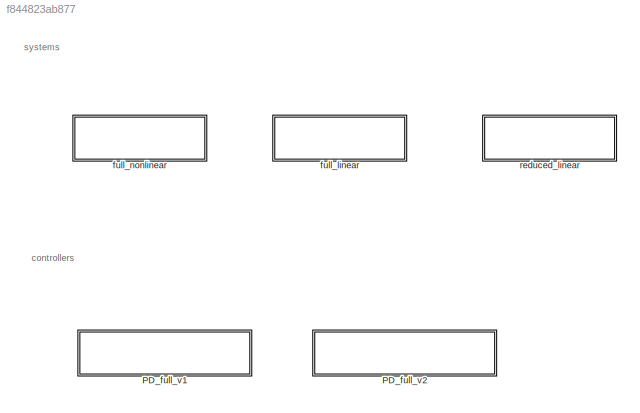
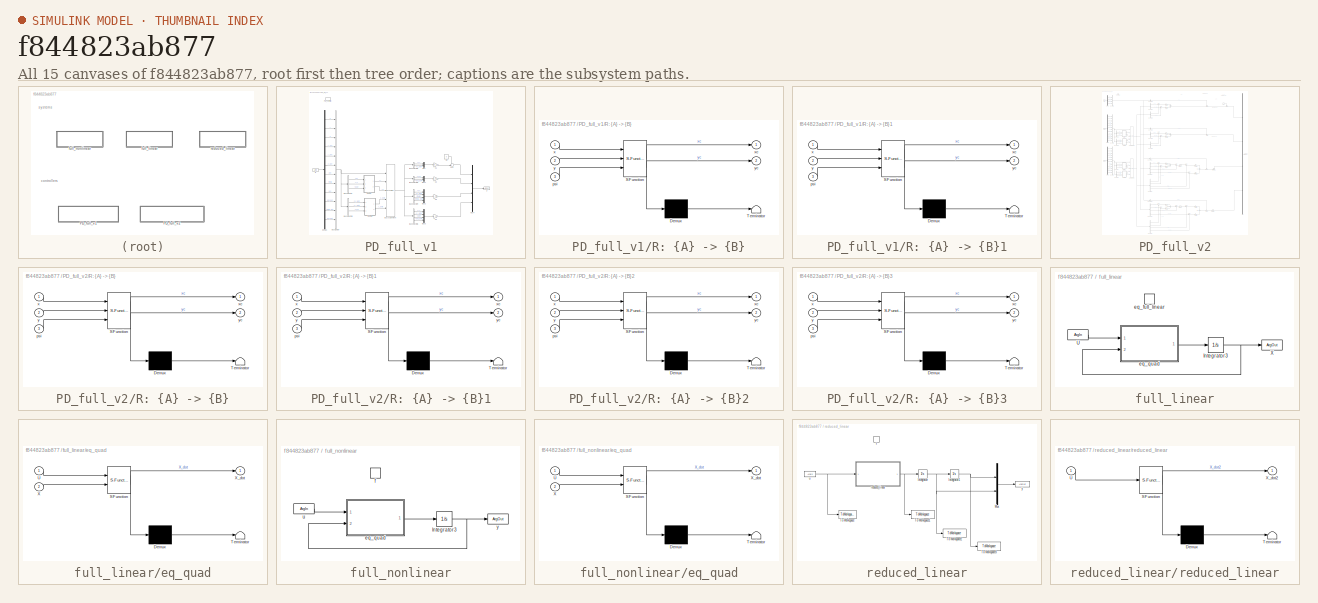
[diagram: thumbnail index - all 15 canvases of the model, root first then tree order]
MODEL slx_f844823ab877
KIND model
CONFIG AbsTol = auto
CONFIG FixedStep = auto
CONFIG MaxStep = auto
CONFIG MinStep = auto
CONFIG RelTol = 1e-3
CONFIG SampleTimeConstraint = Unconstrained
CONFIG Solver = ode45
CONFIG SolverMode = Auto
CONFIG SolverName = ode45
CONFIG StartTime = 0.0
CONFIG StopTime = 10.0
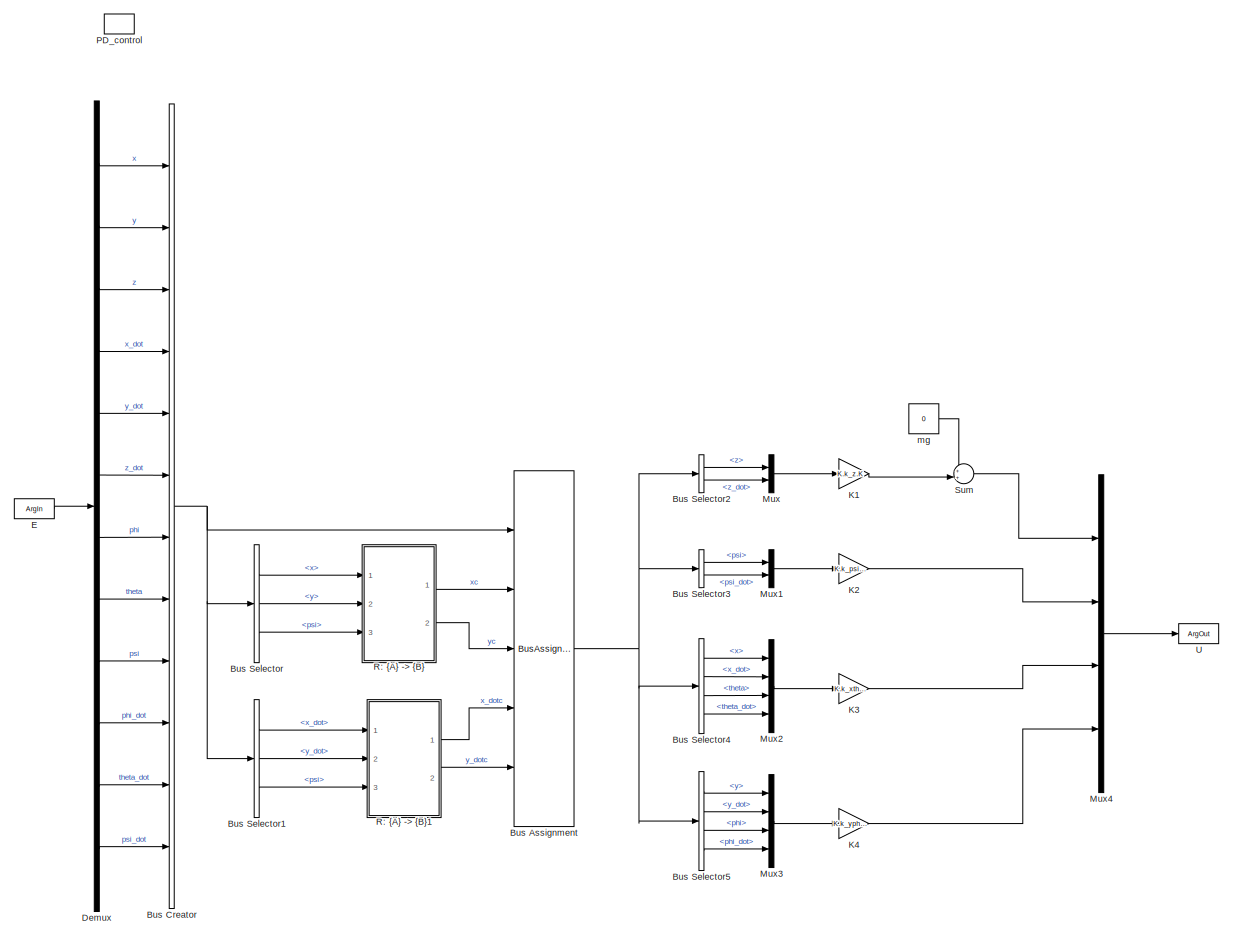
[diagram: PD_full_v1 - part 1/1, most of the canvas]
BLOCK [SubSystem] PD_full_v1
  Ports = [0, 0, 0, 1]
  RequestExecContextInheritance = off
  TreatAsAtomicUnit = on
BLOCK [BusAssignment] PD_full_v1/Bus Assignment
  AssignedSignals = x,y,x_dot,y_dot
  Ports = [5, 1]
BLOCK [BusCreator] PD_full_v1/Bus Creator
  DisplayOption = bar
  Inputs = 12
  Ports = [12, 1]
BLOCK [BusSelector] PD_full_v1/Bus Selector
  OutputSignals = x,y,psi
  Ports = [1, 3]
BLOCK [BusSelector] PD_full_v1/Bus Selector1
  OutputSignals = x_dot,y_dot,psi
  Ports = [1, 3]
BLOCK [BusSelector] PD_full_v1/Bus Selector2
  OutputSignals = z,z_dot
  Ports = [1, 2]
BLOCK [BusSelector] PD_full_v1/Bus Selector3
  OutputSignals = psi,psi_dot
  Ports = [1, 2]
BLOCK [BusSelector] PD_full_v1/Bus Selector4
  OutputSignals = x,x_dot,theta,theta_dot
  Ports = [1, 4]
BLOCK [BusSelector] PD_full_v1/Bus Selector5
  OutputSignals = y,y_dot,phi,phi_dot
  Ports = [1, 4]
BLOCK [Demux] PD_full_v1/Demux
  DisplayOption = bar
  Outputs = 12
  Ports = [1, 12]
BLOCK [ArgIn] PD_full_v1/E
  ArgumentName = E
  DisableCoverage = on
  PortDimensions = 12
BLOCK [Gain] PD_full_v1/K1
  Gain = K.k_z.K
  Multiplication = Matrix(K*u)
  OutDataTypeStr = Inherit: Inherit via internal rule
  ParamDataTypeStr = Inherit: Inherit via internal rule
  SaturateOnIntegerOverflow = off
BLOCK [Gain] PD_full_v1/K2
  Gain = K.k_psi.K
  Multiplication = Matrix(K*u)
  OutDataTypeStr = Inherit: Inherit via internal rule
  ParamDataTypeStr = Inherit: Inherit via internal rule
  SaturateOnIntegerOverflow = off
BLOCK [Gain] PD_full_v1/K3
  Gain = K.k_xtheta.K
  Multiplication = Matrix(K*u)
  OutDataTypeStr = Inherit: Inherit via internal rule
  ParamDataTypeStr = Inherit: Inherit via internal rule
  SaturateOnIntegerOverflow = off
BLOCK [Gain] PD_full_v1/K4
  Gain = K.k_yphi.K
  Multiplication = Matrix(K*u)
  OutDataTypeStr = Inherit: Inherit via internal rule
  ParamDataTypeStr = Inherit: Inherit via internal rule
  SaturateOnIntegerOverflow = off
BLOCK [Mux] PD_full_v1/Mux
  DisplayOption = bar
  Inputs = 2
  Ports = [2, 1]
BLOCK [Mux] PD_full_v1/Mux1
  DisplayOption = bar
  Inputs = 2
  Ports = [2, 1]
BLOCK [Mux] PD_full_v1/Mux2
  DisplayOption = bar
  Ports = [4, 1]
BLOCK [Mux] PD_full_v1/Mux3
  DisplayOption = bar
  Ports = [4, 1]
BLOCK [Mux] PD_full_v1/Mux4
  DisplayOption = bar
  Ports = [4, 1]
BLOCK [TriggerPort] PD_full_v1/PD_control
  FunctionName = PD_full_v1
  IsSimulinkFunction = on
  Ports = []
  StatesWhenEnabling = held
  TriggerType = function-call
BLOCK [SubSystem] PD_full_v1/R: {A} -> {B}
  ErrorFcn = Stateflow.Translate.translate
  PermitHierarchicalResolution = ExplicitOnly
  Ports = [3, 2]
  RequestExecContextInheritance = off
  SFBlockType = MATLAB Function
  TreatAsAtomicUnit = on
BLOCK [Demux] PD_full_v1/R: {A} -> {B}/ Demux 
  Outputs = 1
  Ports = [1, 1]
BLOCK [S-Function] PD_full_v1/R: {A} -> {B}/ SFunction 
  EnableBusSupport = on
  FunctionName = sf_sfun
  PortCounts = [3 3]
  Ports = [3, 3]
  Tag = Stateflow S-Function SYSTEM 3
BLOCK [Terminator] PD_full_v1/R: {A} -> {B}/ Terminator 
BLOCK [Inport] PD_full_v1/R: {A} -> {B}/psi
  IconDisplay = Port number
  Port = 3
BLOCK [Inport] PD_full_v1/R: {A} -> {B}/x
  IconDisplay = Port number
BLOCK [Outport] PD_full_v1/R: {A} -> {B}/xc
  IconDisplay = Port number
BLOCK [Inport] PD_full_v1/R: {A} -> {B}/y
  IconDisplay = Port number
  Port = 2
BLOCK [Outport] PD_full_v1/R: {A} -> {B}/yc
  IconDisplay = Port number
  Port = 2
BLOCK [SubSystem] PD_full_v1/R: {A} -> {B}1
  ErrorFcn = Stateflow.Translate.translate
  PermitHierarchicalResolution = ExplicitOnly
  Ports = [3, 2]
  RequestExecContextInheritance = off
  SFBlockType = MATLAB Function
  TreatAsAtomicUnit = on
BLOCK [Demux] PD_full_v1/R: {A} -> {B}1/ Demux 
  Outputs = 1
  Ports = [1, 1]
BLOCK [S-Function] PD_full_v1/R: {A} -> {B}1/ SFunction 
  EnableBusSupport = on
  FunctionName = sf_sfun
  PortCounts = [3 3]
  Ports = [3, 3]
  Tag = Stateflow S-Function SYSTEM 5
BLOCK [Terminator] PD_full_v1/R: {A} -> {B}1/ Terminator 
BLOCK [Inport] PD_full_v1/R: {A} -> {B}1/psi
  IconDisplay = Port number
  Port = 3
BLOCK [Inport] PD_full_v1/R: {A} -> {B}1/x
  IconDisplay = Port number
BLOCK [Outport] PD_full_v1/R: {A} -> {B}1/xc
  IconDisplay = Port number
BLOCK [Inport] PD_full_v1/R: {A} -> {B}1/y
  IconDisplay = Port number
  Port = 2
BLOCK [Outport] PD_full_v1/R: {A} -> {B}1/yc
  IconDisplay = Port number
  Port = 2
BLOCK [Sum] PD_full_v1/Sum
  IconShape = round
  InputSameDT = off
  Inputs = ++|
  OutDataTypeStr = Inherit: Inherit via internal rule
  Ports = [2, 1]
  SaturateOnIntegerOverflow = off
BLOCK [ArgOut] PD_full_v1/U
  ArgumentName = U
  DisableCoverage = on
  PortDimensions = 4
BLOCK [Constant] PD_full_v1/mg
  SampleTime = -1
  Value = 0
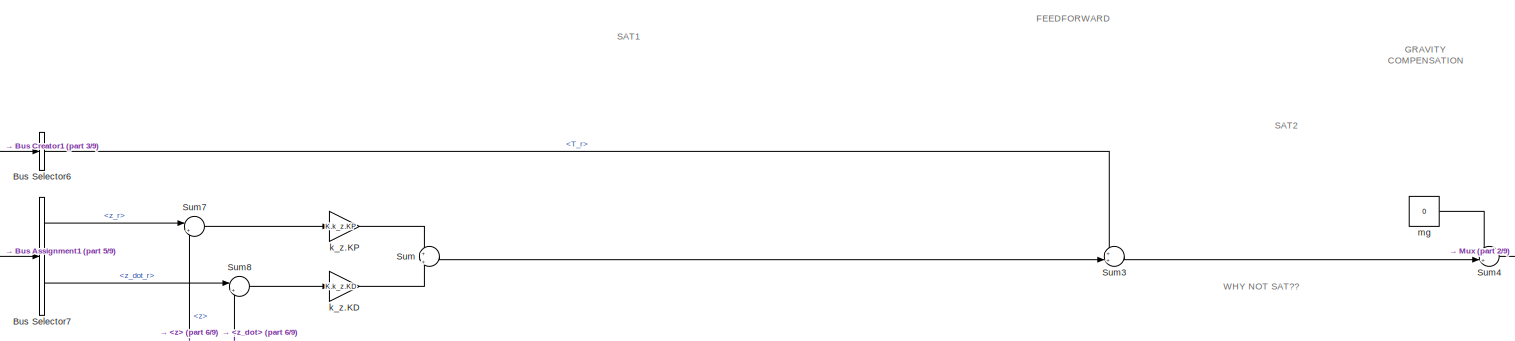
[diagram: PD_full_v2 - part 1/9, top center region]
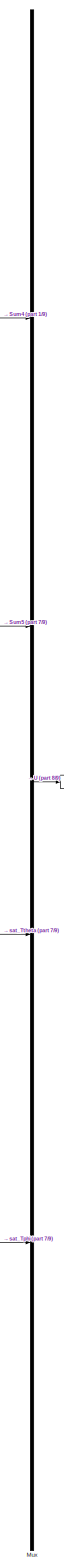
[diagram: PD_full_v2 - part 2/9, right side, full height]
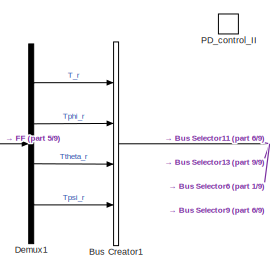
[diagram: PD_full_v2 - part 3/9, top left region]
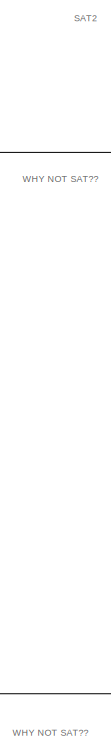
[diagram: PD_full_v2 - part 4/9, top right region]
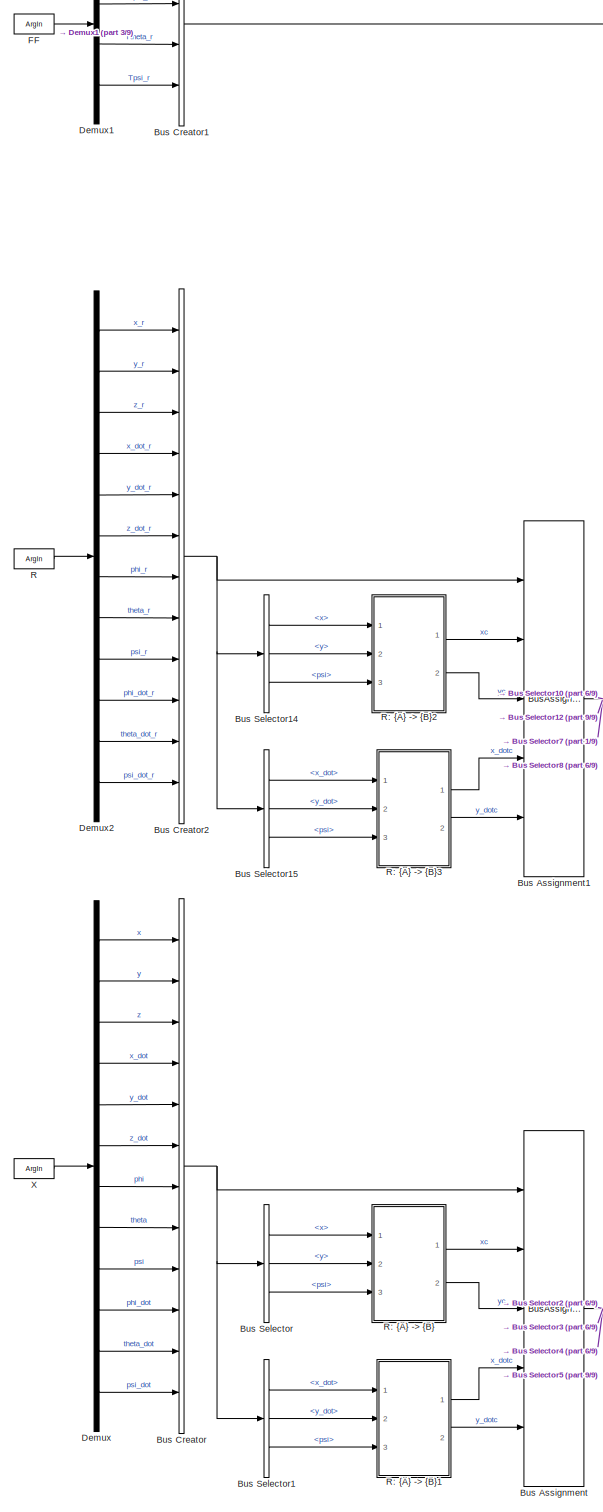
[diagram: PD_full_v2 - part 5/9, middle left region]
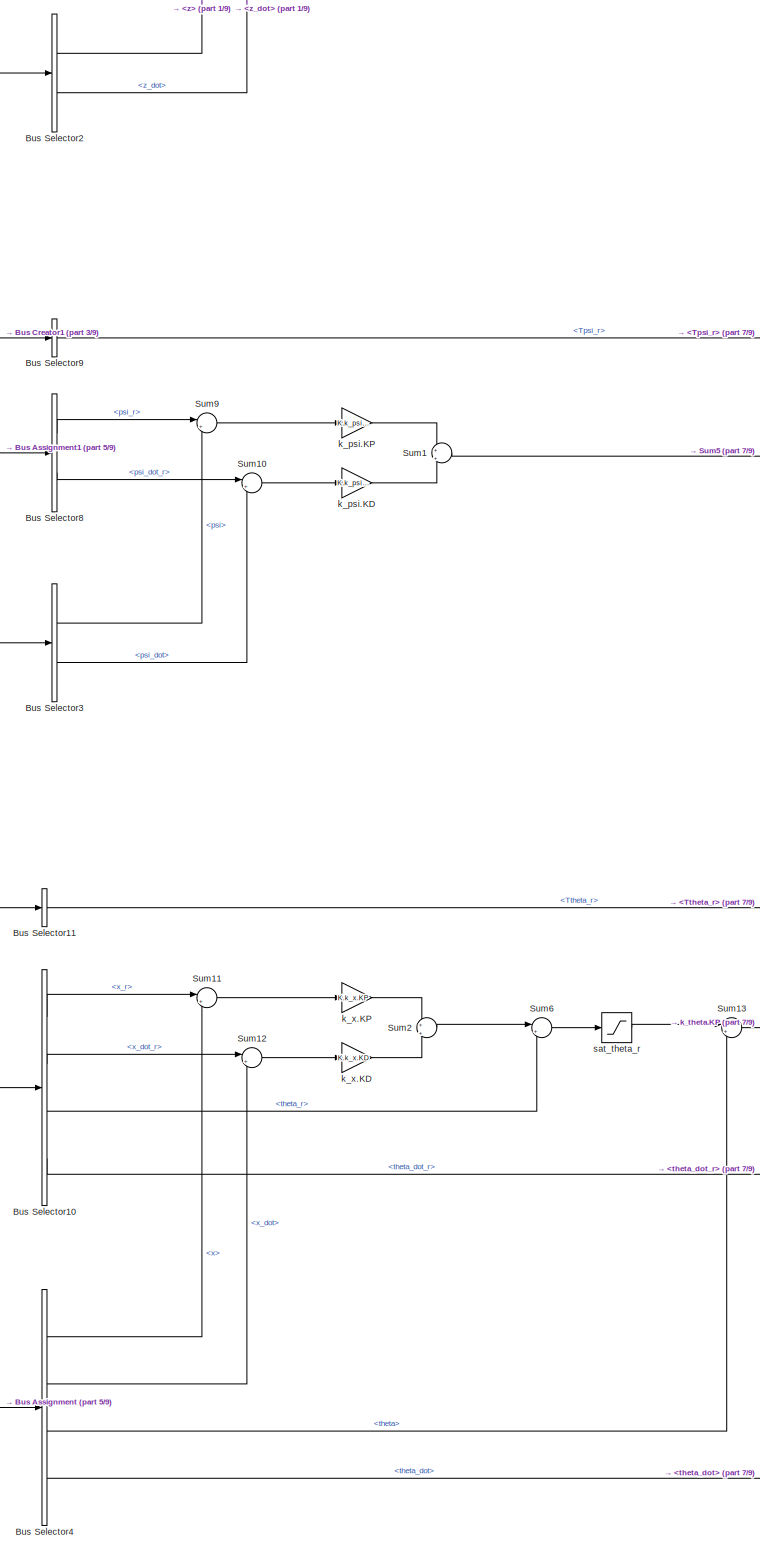
[diagram: PD_full_v2 - part 6/9, central region]
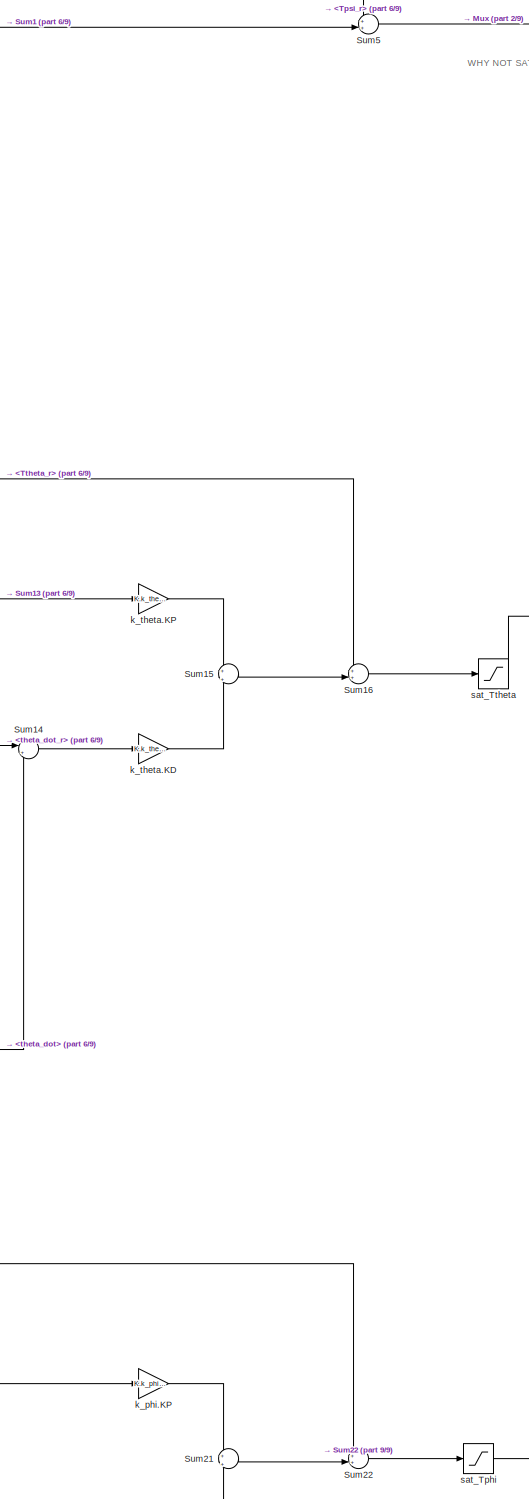
[diagram: PD_full_v2 - part 7/9, middle right region]
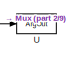
[diagram: PD_full_v2 - part 8/9, middle right region]
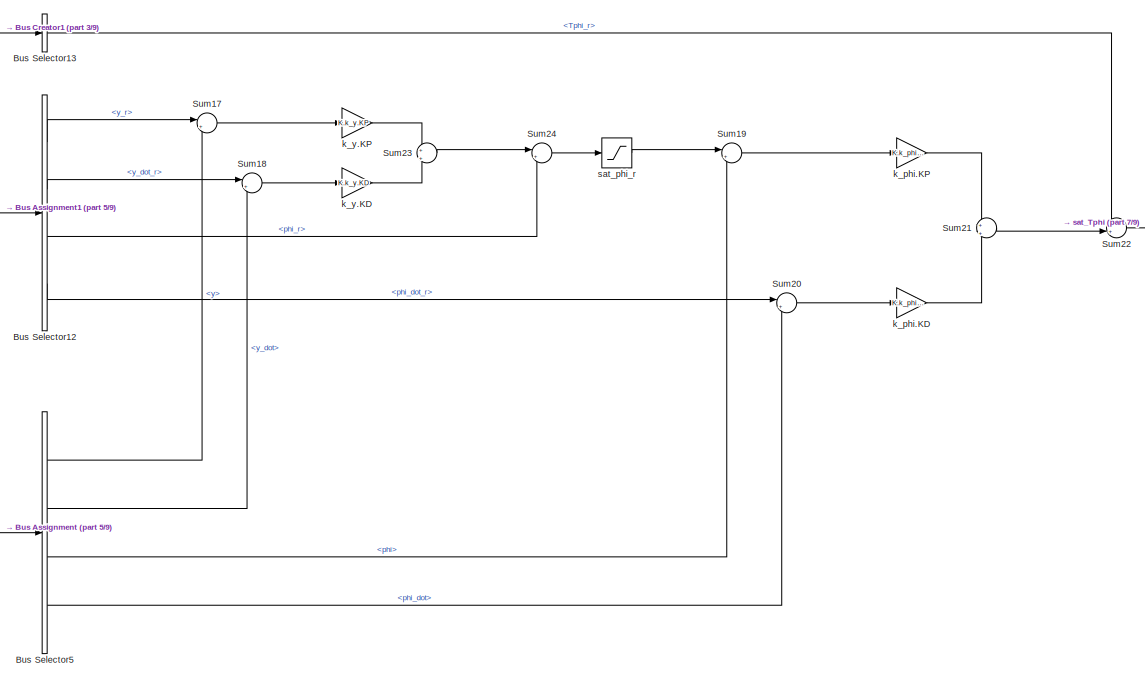
[diagram: PD_full_v2 - part 9/9, bottom center region]
BLOCK [SubSystem] PD_full_v2
  Ports = [0, 0, 0, 1]
  RequestExecContextInheritance = off
  TreatAsAtomicUnit = on
BLOCK [BusAssignment] PD_full_v2/Bus Assignment
  AssignedSignals = x,y,x_dot,y_dot
  Ports = [5, 1]
BLOCK [BusAssignment] PD_full_v2/Bus Assignment1
  AssignedSignals = x,y,x_dot,y_dot
  Ports = [5, 1]
BLOCK [BusCreator] PD_full_v2/Bus Creator
  DisplayOption = bar
  Inputs = 12
  Ports = [12, 1]
BLOCK [BusCreator] PD_full_v2/Bus Creator1
  DisplayOption = bar
  Ports = [4, 1]
BLOCK [BusCreator] PD_full_v2/Bus Creator2
  DisplayOption = bar
  Inputs = 12
  Ports = [12, 1]
BLOCK [BusSelector] PD_full_v2/Bus Selector
  OutputSignals = x,y,psi
  Ports = [1, 3]
BLOCK [BusSelector] PD_full_v2/Bus Selector1
  OutputSignals = x_dot,y_dot,psi
  Ports = [1, 3]
BLOCK [BusSelector] PD_full_v2/Bus Selector10
  OutputSignals = x_r,x_dot_r,theta_r,theta_dot_r
  Ports = [1, 4]
BLOCK [BusSelector] PD_full_v2/Bus Selector11
  OutputSignals = Ttheta_r
  Ports = [1, 1]
BLOCK [BusSelector] PD_full_v2/Bus Selector12
  OutputSignals = y_r,y_dot_r,phi_r,phi_dot_r
  Ports = [1, 4]
BLOCK [BusSelector] PD_full_v2/Bus Selector13
  OutputSignals = Tphi_r
  Ports = [1, 1]
BLOCK [BusSelector] PD_full_v2/Bus Selector14
  OutputSignals = x,y,psi
  Ports = [1, 3]
BLOCK [BusSelector] PD_full_v2/Bus Selector15
  OutputSignals = x_dot,y_dot,psi
  Ports = [1, 3]
BLOCK [BusSelector] PD_full_v2/Bus Selector2
  OutputSignals = z,z_dot
  Ports = [1, 2]
BLOCK [BusSelector] PD_full_v2/Bus Selector3
  OutputSignals = psi,psi_dot
  Ports = [1, 2]
BLOCK [BusSelector] PD_full_v2/Bus Selector4
  OutputSignals = x,x_dot,theta,theta_dot
  Ports = [1, 4]
BLOCK [BusSelector] PD_full_v2/Bus Selector5
  OutputSignals = y,y_dot,phi,phi_dot
  Ports = [1, 4]
BLOCK [BusSelector] PD_full_v2/Bus Selector6
  OutputSignals = T_r
  Ports = [1, 1]
BLOCK [BusSelector] PD_full_v2/Bus Selector7
  OutputSignals = z_r,z_dot_r
  Ports = [1, 2]
BLOCK [BusSelector] PD_full_v2/Bus Selector8
  OutputSignals = psi_r,psi_dot_r
  Ports = [1, 2]
BLOCK [BusSelector] PD_full_v2/Bus Selector9
  OutputSignals = Tpsi_r
  Ports = [1, 1]
BLOCK [Demux] PD_full_v2/Demux
  DisplayOption = bar
  Outputs = 12
  Ports = [1, 12]
BLOCK [Demux] PD_full_v2/Demux1
  DisplayOption = bar
  Ports = [1, 4]
BLOCK [Demux] PD_full_v2/Demux2
  DisplayOption = bar
  Outputs = 12
  Ports = [1, 12]
BLOCK [ArgIn] PD_full_v2/FF
  ArgumentName = FF
  DisableCoverage = on
  PortDimensions = 4
BLOCK [Mux] PD_full_v2/Mux
  DisplayOption = bar
  Ports = [4, 1]
BLOCK [TriggerPort] PD_full_v2/PD_control_II
  FunctionName = PD_full_v2
  IsSimulinkFunction = on
  Ports = []
  StatesWhenEnabling = held
  TriggerType = function-call
BLOCK [ArgIn] PD_full_v2/R
  ArgumentName = R
  Port = 2
  PortDimensions = 12
BLOCK [SubSystem] PD_full_v2/R: {A} -> {B}
  ErrorFcn = Stateflow.Translate.translate
  PermitHierarchicalResolution = ExplicitOnly
  Ports = [3, 2]
  RequestExecContextInheritance = off
  SFBlockType = MATLAB Function
  TreatAsAtomicUnit = on
BLOCK [Demux] PD_full_v2/R: {A} -> {B}/ Demux 
  Outputs = 1
  Ports = [1, 1]
BLOCK [S-Function] PD_full_v2/R: {A} -> {B}/ SFunction 
  EnableBusSupport = on
  FunctionName = sf_sfun
  PortCounts = [3 3]
  Ports = [3, 3]
  Tag = Stateflow S-Function SYSTEM 6
BLOCK [Terminator] PD_full_v2/R: {A} -> {B}/ Terminator 
BLOCK [Inport] PD_full_v2/R: {A} -> {B}/psi
  IconDisplay = Port number
  Port = 3
BLOCK [Inport] PD_full_v2/R: {A} -> {B}/x
  IconDisplay = Port number
BLOCK [Outport] PD_full_v2/R: {A} -> {B}/xc
  IconDisplay = Port number
BLOCK [Inport] PD_full_v2/R: {A} -> {B}/y
  IconDisplay = Port number
  Port = 2
BLOCK [Outport] PD_full_v2/R: {A} -> {B}/yc
  IconDisplay = Port number
  Port = 2
BLOCK [SubSystem] PD_full_v2/R: {A} -> {B}1
  ErrorFcn = Stateflow.Translate.translate
  PermitHierarchicalResolution = ExplicitOnly
  Ports = [3, 2]
  RequestExecContextInheritance = off
  SFBlockType = MATLAB Function
  TreatAsAtomicUnit = on
BLOCK [Demux] PD_full_v2/R: {A} -> {B}1/ Demux 
  Outputs = 1
  Ports = [1, 1]
BLOCK [S-Function] PD_full_v2/R: {A} -> {B}1/ SFunction 
  EnableBusSupport = on
  FunctionName = sf_sfun
  PortCounts = [3 3]
  Ports = [3, 3]
  Tag = Stateflow S-Function SYSTEM 7
BLOCK [Terminator] PD_full_v2/R: {A} -> {B}1/ Terminator 
BLOCK [Inport] PD_full_v2/R: {A} -> {B}1/psi
  IconDisplay = Port number
  Port = 3
BLOCK [Inport] PD_full_v2/R: {A} -> {B}1/x
  IconDisplay = Port number
BLOCK [Outport] PD_full_v2/R: {A} -> {B}1/xc
  IconDisplay = Port number
BLOCK [Inport] PD_full_v2/R: {A} -> {B}1/y
  IconDisplay = Port number
  Port = 2
BLOCK [Outport] PD_full_v2/R: {A} -> {B}1/yc
  IconDisplay = Port number
  Port = 2
BLOCK [SubSystem] PD_full_v2/R: {A} -> {B}2
  ErrorFcn = Stateflow.Translate.translate
  PermitHierarchicalResolution = ExplicitOnly
  Ports = [3, 2]
  RequestExecContextInheritance = off
  SFBlockType = MATLAB Function
  TreatAsAtomicUnit = on
BLOCK [Demux] PD_full_v2/R: {A} -> {B}2/ Demux 
  Outputs = 1
  Ports = [1, 1]
BLOCK [S-Function] PD_full_v2/R: {A} -> {B}2/ SFunction 
  EnableBusSupport = on
  FunctionName = sf_sfun
  PortCounts = [3 3]
  Ports = [3, 3]
  Tag = Stateflow S-Function SYSTEM 8
BLOCK [Terminator] PD_full_v2/R: {A} -> {B}2/ Terminator 
BLOCK [Inport] PD_full_v2/R: {A} -> {B}2/psi
  IconDisplay = Port number
  Port = 3
BLOCK [Inport] PD_full_v2/R: {A} -> {B}2/x
  IconDisplay = Port number
BLOCK [Outport] PD_full_v2/R: {A} -> {B}2/xc
  IconDisplay = Port number
BLOCK [Inport] PD_full_v2/R: {A} -> {B}2/y
  IconDisplay = Port number
  Port = 2
BLOCK [Outport] PD_full_v2/R: {A} -> {B}2/yc
  IconDisplay = Port number
  Port = 2
BLOCK [SubSystem] PD_full_v2/R: {A} -> {B}3
  ErrorFcn = Stateflow.Translate.translate
  PermitHierarchicalResolution = ExplicitOnly
  Ports = [3, 2]
  RequestExecContextInheritance = off
  SFBlockType = MATLAB Function
  TreatAsAtomicUnit = on
BLOCK [Demux] PD_full_v2/R: {A} -> {B}3/ Demux 
  Outputs = 1
  Ports = [1, 1]
BLOCK [S-Function] PD_full_v2/R: {A} -> {B}3/ SFunction 
  EnableBusSupport = on
  FunctionName = sf_sfun
  PortCounts = [3 3]
  Ports = [3, 3]
  Tag = Stateflow S-Function SYSTEM 9
BLOCK [Terminator] PD_full_v2/R: {A} -> {B}3/ Terminator 
BLOCK [Inport] PD_full_v2/R: {A} -> {B}3/psi
  IconDisplay = Port number
  Port = 3
BLOCK [Inport] PD_full_v2/R: {A} -> {B}3/x
  IconDisplay = Port number
BLOCK [Outport] PD_full_v2/R: {A} -> {B}3/xc
  IconDisplay = Port number
BLOCK [Inport] PD_full_v2/R: {A} -> {B}3/y
  IconDisplay = Port number
  Port = 2
BLOCK [Outport] PD_full_v2/R: {A} -> {B}3/yc
  IconDisplay = Port number
  Port = 2
BLOCK [Sum] PD_full_v2/Sum
  IconShape = round
  InputSameDT = off
  Inputs = +|+
  OutDataTypeStr = Inherit: Inherit via internal rule
  Ports = [2, 1]
  SaturateOnIntegerOverflow = off
BLOCK [Sum] PD_full_v2/Sum1
  IconShape = round
  InputSameDT = off
  Inputs = +|+
  OutDataTypeStr = Inherit: Inherit via internal rule
  Ports = [2, 1]
  SaturateOnIntegerOverflow = off
BLOCK [Sum] PD_full_v2/Sum10
  IconShape = round
  InputSameDT = off
  Inputs = |+-
  OutDataTypeStr = Inherit: Inherit via internal rule
  Ports = [2, 1]
  SaturateOnIntegerOverflow = off
BLOCK [Sum] PD_full_v2/Sum11
  IconShape = round
  InputSameDT = off
  Inputs = |+-
  OutDataTypeStr = Inherit: Inherit via internal rule
  Ports = [2, 1]
  SaturateOnIntegerOverflow = off
BLOCK [Sum] PD_full_v2/Sum12
  IconShape = round
  InputSameDT = off
  Inputs = |+-
  OutDataTypeStr = Inherit: Inherit via internal rule
  Ports = [2, 1]
  SaturateOnIntegerOverflow = off
BLOCK [Sum] PD_full_v2/Sum13
  IconShape = round
  InputSameDT = off
  Inputs = |+-
  OutDataTypeStr = Inherit: Inherit via internal rule
  Ports = [2, 1]
  SaturateOnIntegerOverflow = off
BLOCK [Sum] PD_full_v2/Sum14
  IconShape = round
  InputSameDT = off
  Inputs = |+-
  OutDataTypeStr = Inherit: Inherit via internal rule
  Ports = [2, 1]
  SaturateOnIntegerOverflow = off
BLOCK [Sum] PD_full_v2/Sum15
  IconShape = round
  InputSameDT = off
  Inputs = +|+
  OutDataTypeStr = Inherit: Inherit via internal rule
  Ports = [2, 1]
  SaturateOnIntegerOverflow = off
BLOCK [Sum] PD_full_v2/Sum16
  IconShape = round
  InputSameDT = off
  Inputs = ++|
  OutDataTypeStr = Inherit: Inherit via internal rule
  Ports = [2, 1]
  SaturateOnIntegerOverflow = off
BLOCK [Sum] PD_full_v2/Sum17
  IconShape = round
  InputSameDT = off
  Inputs = |+-
  OutDataTypeStr = Inherit: Inherit via internal rule
  Ports = [2, 1]
  SaturateOnIntegerOverflow = off
BLOCK [Sum] PD_full_v2/Sum18
  IconShape = round
  InputSameDT = off
  Inputs = |+-
  OutDataTypeStr = Inherit: Inherit via internal rule
  Ports = [2, 1]
  SaturateOnIntegerOverflow = off
BLOCK [Sum] PD_full_v2/Sum19
  IconShape = round
  InputSameDT = off
  Inputs = |+-
  OutDataTypeStr = Inherit: Inherit via internal rule
  Ports = [2, 1]
  SaturateOnIntegerOverflow = off
BLOCK [Sum] PD_full_v2/Sum2
  IconShape = round
  InputSameDT = off
  Inputs = +|+
  OutDataTypeStr = Inherit: Inherit via internal rule
  Ports = [2, 1]
  SaturateOnIntegerOverflow = off
BLOCK [Sum] PD_full_v2/Sum20
  IconShape = round
  InputSameDT = off
  Inputs = |+-
  OutDataTypeStr = Inherit: Inherit via internal rule
  Ports = [2, 1]
  SaturateOnIntegerOverflow = off
BLOCK [Sum] PD_full_v2/Sum21
  IconShape = round
  InputSameDT = off
  Inputs = +|+
  OutDataTypeStr = Inherit: Inherit via internal rule
  Ports = [2, 1]
  SaturateOnIntegerOverflow = off
BLOCK [Sum] PD_full_v2/Sum22
  IconShape = round
  InputSameDT = off
  Inputs = ++|
  OutDataTypeStr = Inherit: Inherit via internal rule
  Ports = [2, 1]
  SaturateOnIntegerOverflow = off
BLOCK [Sum] PD_full_v2/Sum23
  IconShape = round
  InputSameDT = off
  Inputs = +|+
  OutDataTypeStr = Inherit: Inherit via internal rule
  Ports = [2, 1]
  SaturateOnIntegerOverflow = off
BLOCK [Sum] PD_full_v2/Sum24
  IconShape = round
  InputSameDT = off
  Inputs = |++
  OutDataTypeStr = Inherit: Inherit via internal rule
  Ports = [2, 1]
  SaturateOnIntegerOverflow = off
BLOCK [Sum] PD_full_v2/Sum3
  IconShape = round
  InputSameDT = off
  Inputs = ++|
  OutDataTypeStr = Inherit: Inherit via internal rule
  Ports = [2, 1]
  SaturateOnIntegerOverflow = off
BLOCK [Sum] PD_full_v2/Sum4
  IconShape = round
  InputSameDT = off
  Inputs = ++|
  OutDataTypeStr = Inherit: Inherit via internal rule
  Ports = [2, 1]
  SaturateOnIntegerOverflow = off
BLOCK [Sum] PD_full_v2/Sum5
  IconShape = round
  InputSameDT = off
  Inputs = ++|
  OutDataTypeStr = Inherit: Inherit via internal rule
  Ports = [2, 1]
  SaturateOnIntegerOverflow = off
BLOCK [Sum] PD_full_v2/Sum6
  IconShape = round
  InputSameDT = off
  Inputs = |++
  OutDataTypeStr = Inherit: Inherit via internal rule
  Ports = [2, 1]
  SaturateOnIntegerOverflow = off
BLOCK [Sum] PD_full_v2/Sum7
  IconShape = round
  InputSameDT = off
  Inputs = |+-
  OutDataTypeStr = Inherit: Inherit via internal rule
  Ports = [2, 1]
  SaturateOnIntegerOverflow = off
BLOCK [Sum] PD_full_v2/Sum8
  IconShape = round
  InputSameDT = off
  Inputs = |+-
  OutDataTypeStr = Inherit: Inherit via internal rule
  Ports = [2, 1]
  SaturateOnIntegerOverflow = off
BLOCK [Sum] PD_full_v2/Sum9
  IconShape = round
  InputSameDT = off
  Inputs = |+-
  OutDataTypeStr = Inherit: Inherit via internal rule
  Ports = [2, 1]
  SaturateOnIntegerOverflow = off
BLOCK [ArgOut] PD_full_v2/U
  ArgumentName = U
  DisableCoverage = on
  PortDimensions = 4
BLOCK [ArgIn] PD_full_v2/X
  ArgumentName = X
  Port = 3
  PortDimensions = 12
BLOCK [Gain] PD_full_v2/k_phi.KD
  Gain = K.k_phi.KD
  OutDataTypeStr = Inherit: Inherit via internal rule
  ParamDataTypeStr = Inherit: Inherit via internal rule
  SaturateOnIntegerOverflow = off
BLOCK [Gain] PD_full_v2/k_phi.KP
  Gain = K.k_phi.KP
  OutDataTypeStr = Inherit: Inherit via internal rule
  ParamDataTypeStr = Inherit: Inherit via internal rule
  SaturateOnIntegerOverflow = off
BLOCK [Gain] PD_full_v2/k_psi.KD
  Gain = K.k_psi.KD
  OutDataTypeStr = Inherit: Inherit via internal rule
  ParamDataTypeStr = Inherit: Inherit via internal rule
  SaturateOnIntegerOverflow = off
BLOCK [Gain] PD_full_v2/k_psi.KP
  Gain = K.k_psi.KP
  OutDataTypeStr = Inherit: Inherit via internal rule
  ParamDataTypeStr = Inherit: Inherit via internal rule
  SaturateOnIntegerOverflow = off
BLOCK [Gain] PD_full_v2/k_theta.KD
  Gain = K.k_theta.KD
  OutDataTypeStr = Inherit: Inherit via internal rule
  ParamDataTypeStr = Inherit: Inherit via internal rule
  SaturateOnIntegerOverflow = off
BLOCK [Gain] PD_full_v2/k_theta.KP
  Gain = K.k_theta.KP
  OutDataTypeStr = Inherit: Inherit via internal rule
  ParamDataTypeStr = Inherit: Inherit via internal rule
  SaturateOnIntegerOverflow = off
BLOCK [Gain] PD_full_v2/k_x.KD
  Gain = K.k_x.KD
  OutDataTypeStr = Inherit: Inherit via internal rule
  ParamDataTypeStr = Inherit: Inherit via internal rule
  SaturateOnIntegerOverflow = off
BLOCK [Gain] PD_full_v2/k_x.KP
  Gain = K.k_x.KP
  OutDataTypeStr = Inherit: Inherit via internal rule
  ParamDataTypeStr = Inherit: Inherit via internal rule
  SaturateOnIntegerOverflow = off
BLOCK [Gain] PD_full_v2/k_y.KD
  Gain = K.k_y.KD
  OutDataTypeStr = Inherit: Inherit via internal rule
  ParamDataTypeStr = Inherit: Inherit via internal rule
  SaturateOnIntegerOverflow = off
BLOCK [Gain] PD_full_v2/k_y.KP
  Gain = K.k_y.KP
  OutDataTypeStr = Inherit: Inherit via internal rule
  ParamDataTypeStr = Inherit: Inherit via internal rule
  SaturateOnIntegerOverflow = off
BLOCK [Gain] PD_full_v2/k_z.KD
  Gain = K.k_z.KD
  OutDataTypeStr = Inherit: Inherit via internal rule
  ParamDataTypeStr = Inherit: Inherit via internal rule
  SaturateOnIntegerOverflow = off
BLOCK [Gain] PD_full_v2/k_z.KP
  Gain = K.k_z.KP
  OutDataTypeStr = Inherit: Inherit via internal rule
  ParamDataTypeStr = Inherit: Inherit via internal rule
  SaturateOnIntegerOverflow = off
BLOCK [Constant] PD_full_v2/mg
  Value = 0
BLOCK [Saturate] PD_full_v2/sat_Tphi
  InputPortMap = u0
  LowerLimit = param.sat.Tphi.min
  Ports = [1, 1]
  UpperLimit = param.sat.Tphi.max
BLOCK [Saturate] PD_full_v2/sat_Ttheta
  InputPortMap = u0
  LowerLimit = param.sat.Ttheta.min
  Ports = [1, 1]
  UpperLimit = param.sat.Ttheta.max
BLOCK [Saturate] PD_full_v2/sat_phi_r
  InputPortMap = u0
  LowerLimit = param.sat.phi_r.min
  Ports = [1, 1]
  UpperLimit = param.sat.phi_r.max
BLOCK [Saturate] PD_full_v2/sat_theta_r
  InputPortMap = u0
  LowerLimit = param.sat.theta_r.min
  Ports = [1, 1]
  UpperLimit = param.sat.theta_r.max
BLOCK [SubSystem] full_linear
  Ports = [0, 0, 0, 1]
  RequestExecContextInheritance = off
  TreatAsAtomicUnit = on
BLOCK [Integrator] full_linear/Integrator3
  InitialCondition = state_full_init
  Ports = [1, 1]
BLOCK [ArgIn] full_linear/U
  ArgumentName = U
  DisableCoverage = on
BLOCK [ArgOut] full_linear/X
  ArgumentName = X
  DisableCoverage = on
BLOCK [TriggerPort] full_linear/eq_full_linear
  FunctionName = eq_full_linear
  IsSimulinkFunction = on
  Ports = []
  StatesWhenEnabling = held
  TriggerType = function-call
BLOCK [SubSystem] full_linear/eq_quad
  ErrorFcn = Stateflow.Translate.translate
  PermitHierarchicalResolution = ExplicitOnly
  Ports = [2, 1]
  RequestExecContextInheritance = off
  SFBlockType = MATLAB Function
  TreatAsAtomicUnit = on
BLOCK [Demux] full_linear/eq_quad/ Demux 
  Outputs = 1
  Ports = [1, 1]
BLOCK [S-Function] full_linear/eq_quad/ SFunction 
  EnableBusSupport = on
  FunctionName = sf_sfun
  PortCounts = [2 2]
  Ports = [2, 2]
  Tag = Stateflow S-Function SYSTEM 1
BLOCK [Terminator] full_linear/eq_quad/ Terminator 
BLOCK [Inport] full_linear/eq_quad/U
  IconDisplay = Port number
BLOCK [Inport] full_linear/eq_quad/X
  IconDisplay = Port number
  Port = 2
BLOCK [Outport] full_linear/eq_quad/X_dot
  IconDisplay = Port number
BLOCK [SubSystem] full_nonlinear
  Ports = [0, 0, 0, 1]
  RequestExecContextInheritance = off
  TreatAsAtomicUnit = on
BLOCK [Integrator] full_nonlinear/Integrator3
  InitialCondition = state_full_init
  Ports = [1, 1]
BLOCK [SubSystem] full_nonlinear/eq_quad
  ErrorFcn = Stateflow.Translate.translate
  PermitHierarchicalResolution = ExplicitOnly
  Ports = [2, 1]
  RequestExecContextInheritance = off
  SFBlockType = MATLAB Function
  TreatAsAtomicUnit = on
BLOCK [Demux] full_nonlinear/eq_quad/ Demux 
  Outputs = 1
  Ports = [1, 1]
BLOCK [S-Function] full_nonlinear/eq_quad/ SFunction 
  EnableBusSupport = on
  FunctionName = sf_sfun
  PortCounts = [2 2]
  Ports = [2, 2]
  Tag = Stateflow S-Function SYSTEM 2
BLOCK [Terminator] full_nonlinear/eq_quad/ Terminator 
BLOCK [Inport] full_nonlinear/eq_quad/U
  IconDisplay = Port number
BLOCK [Inport] full_nonlinear/eq_quad/X
  IconDisplay = Port number
  Port = 2
BLOCK [Outport] full_nonlinear/eq_quad/X_dot
  IconDisplay = Port number
BLOCK [TriggerPort] full_nonlinear/f
  FunctionName = eq_full_nonlinear
  IsSimulinkFunction = on
  Ports = []
  StatesWhenEnabling = held
  TriggerType = function-call
BLOCK [ArgIn] full_nonlinear/u
  ArgumentName = U
  DisableCoverage = on
BLOCK [ArgOut] full_nonlinear/y
  ArgumentName = X
  DisableCoverage = on
BLOCK [SubSystem] reduced_linear
  Ports = [0, 0, 0, 1]
  RequestExecContextInheritance = off
  TreatAsAtomicUnit = on
BLOCK [Integrator] reduced_linear/Integrator
  InitialCondition = state_dot_init
  Ports = [1, 1]
BLOCK [Integrator] reduced_linear/Integrator1
  InitialCondition = state_init
  Ports = [1, 1]
BLOCK [Mux] reduced_linear/Mux
  DisplayOption = bar
  Inputs = 2
  Ports = [2, 1]
BLOCK [ToWorkspace] reduced_linear/To Workspace
  FixptAsFi = on
  MaxDataPoints = inf
  Ports = [1]
  SampleTime = -1
  Save2DSignal = 3-D array (concatenate along third dimension)
  SaveFormat = Structure With Time
  VariableName = out_u
BLOCK [ToWorkspace] reduced_linear/To Workspace1
  FixptAsFi = on
  MaxDataPoints = inf
  Ports = [1]
  SampleTime = -1
  Save2DSignal = 3-D array (concatenate along third dimension)
  SaveFormat = Structure With Time
  VariableName = out_state_2dot
BLOCK [ToWorkspace] reduced_linear/To Workspace2
  FixptAsFi = on
  MaxDataPoints = inf
  Ports = [1]
  SampleTime = -1
  Save2DSignal = 3-D array (concatenate along third dimension)
  SaveFormat = Structure With Time
  VariableName = out_state_dot
BLOCK [ToWorkspace] reduced_linear/To Workspace3
  FixptAsFi = on
  MaxDataPoints = inf
  Ports = [1]
  SampleTime = -1
  Save2DSignal = 3-D array (concatenate along third dimension)
  SaveFormat = Structure With Time
  VariableName = out_state
BLOCK [TriggerPort] reduced_linear/f
  FunctionName = eq_full_linear
  IsSimulinkFunction = on
  Ports = []
  StatesWhenEnabling = held
  TriggerType = function-call
BLOCK [SubSystem] reduced_linear/reduced_linear
  ErrorFcn = Stateflow.Translate.translate
  PermitHierarchicalResolution = ExplicitOnly
  Ports = [1, 1]
  RequestExecContextInheritance = off
  SFBlockType = MATLAB Function
  TreatAsAtomicUnit = on
BLOCK [Demux] reduced_linear/reduced_linear/ Demux 
  Outputs = 1
  Ports = [1, 1]
BLOCK [S-Function] reduced_linear/reduced_linear/ SFunction 
  EnableBusSupport = on
  FunctionName = sf_sfun
  PortCounts = [1 2]
  Ports = [1, 2]
  Tag = Stateflow S-Function SYSTEM 4
BLOCK [Terminator] reduced_linear/reduced_linear/ Terminator 
BLOCK [Inport] reduced_linear/reduced_linear/U
  IconDisplay = Port number
BLOCK [Outport] reduced_linear/reduced_linear/X_dot2
  IconDisplay = Port number
BLOCK [ArgIn] reduced_linear/u
  ArgumentName = U
  DisableCoverage = on
BLOCK [ArgOut] reduced_linear/y
  ArgumentName = state
  DisableCoverage = on
ANNOTATION (root): controllers
ANNOTATION (root): systems
ANNOTATION PD_full_v2: WHY NOT SAT??
ANNOTATION PD_full_v2: FEEDFORWARD
ANNOTATION PD_full_v2: GRAVITY COMPENSATION
ANNOTATION PD_full_v2: SAT1
ANNOTATION PD_full_v2: SAT2
NET PD_full_v1/Bus Assignment:1 -> PD_full_v1/Bus Selector2:1, PD_full_v1/Bus Selector3:1, PD_full_v1/Bus Selector4:1, PD_full_v1/Bus Selector5:1
NET PD_full_v1/Bus Creator:1 -> PD_full_v1/Bus Assignment:1, PD_full_v1/Bus Selector1:1, PD_full_v1/Bus Selector:1
LINE PD_full_v1/Bus Selector1:1 -> PD_full_v1/R: {A} -> {B}1:1
LINE PD_full_v1/Bus Selector1:2 -> PD_full_v1/R: {A} -> {B}1:2
LINE PD_full_v1/Bus Selector1:3 -> PD_full_v1/R: {A} -> {B}1:3
LINE PD_full_v1/Bus Selector2:1 -> PD_full_v1/Mux:1
LINE PD_full_v1/Bus Selector2:2 -> PD_full_v1/Mux:2
LINE PD_full_v1/Bus Selector3:1 -> PD_full_v1/Mux1:1
LINE PD_full_v1/Bus Selector3:2 -> PD_full_v1/Mux1:2
LINE PD_full_v1/Bus Selector4:1 -> PD_full_v1/Mux2:1
LINE PD_full_v1/Bus Selector4:2 -> PD_full_v1/Mux2:2
LINE PD_full_v1/Bus Selector4:3 -> PD_full_v1/Mux2:3
LINE PD_full_v1/Bus Selector4:4 -> PD_full_v1/Mux2:4
LINE PD_full_v1/Bus Selector5:1 -> PD_full_v1/Mux3:1
LINE PD_full_v1/Bus Selector5:2 -> PD_full_v1/Mux3:2
LINE PD_full_v1/Bus Selector5:3 -> PD_full_v1/Mux3:3
LINE PD_full_v1/Bus Selector5:4 -> PD_full_v1/Mux3:4
LINE PD_full_v1/Bus Selector:1 -> PD_full_v1/R: {A} -> {B}:1
LINE PD_full_v1/Bus Selector:2 -> PD_full_v1/R: {A} -> {B}:2
LINE PD_full_v1/Bus Selector:3 -> PD_full_v1/R: {A} -> {B}:3
LINE PD_full_v1/Demux:1 -> PD_full_v1/Bus Creator:1
LINE PD_full_v1/Demux:10 -> PD_full_v1/Bus Creator:10
LINE PD_full_v1/Demux:11 -> PD_full_v1/Bus Creator:11
LINE PD_full_v1/Demux:12 -> PD_full_v1/Bus Creator:12
LINE PD_full_v1/Demux:2 -> PD_full_v1/Bus Creator:2
LINE PD_full_v1/Demux:3 -> PD_full_v1/Bus Creator:3
LINE PD_full_v1/Demux:4 -> PD_full_v1/Bus Creator:4
LINE PD_full_v1/Demux:5 -> PD_full_v1/Bus Creator:5
LINE PD_full_v1/Demux:6 -> PD_full_v1/Bus Creator:6
LINE PD_full_v1/Demux:7 -> PD_full_v1/Bus Creator:7
LINE PD_full_v1/Demux:8 -> PD_full_v1/Bus Creator:8
LINE PD_full_v1/Demux:9 -> PD_full_v1/Bus Creator:9
LINE PD_full_v1/E:1 -> PD_full_v1/Demux:1
LINE PD_full_v1/K1:1 -> PD_full_v1/Sum:2
LINE PD_full_v1/K2:1 -> PD_full_v1/Mux4:2
LINE PD_full_v1/K3:1 -> PD_full_v1/Mux4:3
LINE PD_full_v1/K4:1 -> PD_full_v1/Mux4:4
LINE PD_full_v1/Mux1:1 -> PD_full_v1/K2:1
LINE PD_full_v1/Mux2:1 -> PD_full_v1/K3:1
LINE PD_full_v1/Mux3:1 -> PD_full_v1/K4:1
LINE PD_full_v1/Mux4:1 -> PD_full_v1/U:1
LINE PD_full_v1/Mux:1 -> PD_full_v1/K1:1
LINE PD_full_v1/R: {A} -> {B}1:1 -> PD_full_v1/Bus Assignment:4
LINE PD_full_v1/R: {A} -> {B}1:2 -> PD_full_v1/Bus Assignment:5
LINE PD_full_v1/R: {A} -> {B}:1 -> PD_full_v1/Bus Assignment:2
LINE PD_full_v1/R: {A} -> {B}:2 -> PD_full_v1/Bus Assignment:3
LINE PD_full_v1/Sum:1 -> PD_full_v1/Mux4:1
LINE PD_full_v1/mg:1 -> PD_full_v1/Sum:1
NET PD_full_v2/Bus Assignment1:1 -> PD_full_v2/Bus Selector10:1, PD_full_v2/Bus Selector12:1, PD_full_v2/Bus Selector7:1, PD_full_v2/Bus Selector8:1
NET PD_full_v2/Bus Assignment:1 -> PD_full_v2/Bus Selector2:1, PD_full_v2/Bus Selector3:1, PD_full_v2/Bus Selector4:1, PD_full_v2/Bus Selector5:1
NET PD_full_v2/Bus Creator1:1 -> PD_full_v2/Bus Selector11:1, PD_full_v2/Bus Selector13:1, PD_full_v2/Bus Selector6:1, PD_full_v2/Bus Selector9:1
NET PD_full_v2/Bus Creator2:1 -> PD_full_v2/Bus Assignment1:1, PD_full_v2/Bus Selector14:1, PD_full_v2/Bus Selector15:1
NET PD_full_v2/Bus Creator:1 -> PD_full_v2/Bus Assignment:1, PD_full_v2/Bus Selector1:1, PD_full_v2/Bus Selector:1
LINE PD_full_v2/Bus Selector10:1 -> PD_full_v2/Sum11:1
LINE PD_full_v2/Bus Selector10:2 -> PD_full_v2/Sum12:1
LINE PD_full_v2/Bus Selector10:3 -> PD_full_v2/Sum6:2
LINE PD_full_v2/Bus Selector10:4 -> PD_full_v2/Sum14:1
LINE PD_full_v2/Bus Selector11:1 -> PD_full_v2/Sum16:1
LINE PD_full_v2/Bus Selector12:1 -> PD_full_v2/Sum17:1
LINE PD_full_v2/Bus Selector12:2 -> PD_full_v2/Sum18:1
LINE PD_full_v2/Bus Selector12:3 -> PD_full_v2/Sum24:2
LINE PD_full_v2/Bus Selector12:4 -> PD_full_v2/Sum20:1
LINE PD_full_v2/Bus Selector13:1 -> PD_full_v2/Sum22:1
LINE PD_full_v2/Bus Selector14:1 -> PD_full_v2/R: {A} -> {B}2:1
LINE PD_full_v2/Bus Selector14:2 -> PD_full_v2/R: {A} -> {B}2:2
LINE PD_full_v2/Bus Selector14:3 -> PD_full_v2/R: {A} -> {B}2:3
LINE PD_full_v2/Bus Selector15:1 -> PD_full_v2/R: {A} -> {B}3:1
LINE PD_full_v2/Bus Selector15:2 -> PD_full_v2/R: {A} -> {B}3:2
LINE PD_full_v2/Bus Selector15:3 -> PD_full_v2/R: {A} -> {B}3:3
LINE PD_full_v2/Bus Selector1:1 -> PD_full_v2/R: {A} -> {B}1:1
LINE PD_full_v2/Bus Selector1:2 -> PD_full_v2/R: {A} -> {B}1:2
LINE PD_full_v2/Bus Selector1:3 -> PD_full_v2/R: {A} -> {B}1:3
LINE PD_full_v2/Bus Selector2:1 -> PD_full_v2/Sum7:2
LINE PD_full_v2/Bus Selector2:2 -> PD_full_v2/Sum8:2
LINE PD_full_v2/Bus Selector3:1 -> PD_full_v2/Sum9:2
LINE PD_full_v2/Bus Selector3:2 -> PD_full_v2/Sum10:2
LINE PD_full_v2/Bus Selector4:1 -> PD_full_v2/Sum11:2
LINE PD_full_v2/Bus Selector4:2 -> PD_full_v2/Sum12:2
LINE PD_full_v2/Bus Selector4:3 -> PD_full_v2/Sum13:2
LINE PD_full_v2/Bus Selector4:4 -> PD_full_v2/Sum14:2
LINE PD_full_v2/Bus Selector5:1 -> PD_full_v2/Sum17:2
LINE PD_full_v2/Bus Selector5:2 -> PD_full_v2/Sum18:2
LINE PD_full_v2/Bus Selector5:3 -> PD_full_v2/Sum19:2
LINE PD_full_v2/Bus Selector5:4 -> PD_full_v2/Sum20:2
LINE PD_full_v2/Bus Selector6:1 -> PD_full_v2/Sum3:1
LINE PD_full_v2/Bus Selector7:1 -> PD_full_v2/Sum7:1
LINE PD_full_v2/Bus Selector7:2 -> PD_full_v2/Sum8:1
LINE PD_full_v2/Bus Selector8:1 -> PD_full_v2/Sum9:1
LINE PD_full_v2/Bus Selector8:2 -> PD_full_v2/Sum10:1
LINE PD_full_v2/Bus Selector9:1 -> PD_full_v2/Sum5:1
LINE PD_full_v2/Bus Selector:1 -> PD_full_v2/R: {A} -> {B}:1
LINE PD_full_v2/Bus Selector:2 -> PD_full_v2/R: {A} -> {B}:2
LINE PD_full_v2/Bus Selector:3 -> PD_full_v2/R: {A} -> {B}:3
LINE PD_full_v2/Demux1:1 -> PD_full_v2/Bus Creator1:1
LINE PD_full_v2/Demux1:2 -> PD_full_v2/Bus Creator1:2
LINE PD_full_v2/Demux1:3 -> PD_full_v2/Bus Creator1:3
LINE PD_full_v2/Demux1:4 -> PD_full_v2/Bus Creator1:4
LINE PD_full_v2/Demux2:1 -> PD_full_v2/Bus Creator2:1
LINE PD_full_v2/Demux2:10 -> PD_full_v2/Bus Creator2:10
LINE PD_full_v2/Demux2:11 -> PD_full_v2/Bus Creator2:11
LINE PD_full_v2/Demux2:12 -> PD_full_v2/Bus Creator2:12
LINE PD_full_v2/Demux2:2 -> PD_full_v2/Bus Creator2:2
LINE PD_full_v2/Demux2:3 -> PD_full_v2/Bus Creator2:3
LINE PD_full_v2/Demux2:4 -> PD_full_v2/Bus Creator2:4
LINE PD_full_v2/Demux2:5 -> PD_full_v2/Bus Creator2:5
LINE PD_full_v2/Demux2:6 -> PD_full_v2/Bus Creator2:6
LINE PD_full_v2/Demux2:7 -> PD_full_v2/Bus Creator2:7
LINE PD_full_v2/Demux2:8 -> PD_full_v2/Bus Creator2:8
LINE PD_full_v2/Demux2:9 -> PD_full_v2/Bus Creator2:9
LINE PD_full_v2/Demux:1 -> PD_full_v2/Bus Creator:1
LINE PD_full_v2/Demux:10 -> PD_full_v2/Bus Creator:10
LINE PD_full_v2/Demux:11 -> PD_full_v2/Bus Creator:11
LINE PD_full_v2/Demux:12 -> PD_full_v2/Bus Creator:12
LINE PD_full_v2/Demux:2 -> PD_full_v2/Bus Creator:2
LINE PD_full_v2/Demux:3 -> PD_full_v2/Bus Creator:3
LINE PD_full_v2/Demux:4 -> PD_full_v2/Bus Creator:4
LINE PD_full_v2/Demux:5 -> PD_full_v2/Bus Creator:5
LINE PD_full_v2/Demux:6 -> PD_full_v2/Bus Creator:6
LINE PD_full_v2/Demux:7 -> PD_full_v2/Bus Creator:7
LINE PD_full_v2/Demux:8 -> PD_full_v2/Bus Creator:8
LINE PD_full_v2/Demux:9 -> PD_full_v2/Bus Creator:9
LINE PD_full_v2/FF:1 -> PD_full_v2/Demux1:1
LINE PD_full_v2/Mux:1 -> PD_full_v2/U:1
LINE PD_full_v2/R: {A} -> {B}1:1 -> PD_full_v2/Bus Assignment:4
LINE PD_full_v2/R: {A} -> {B}1:2 -> PD_full_v2/Bus Assignment:5
LINE PD_full_v2/R: {A} -> {B}2:1 -> PD_full_v2/Bus Assignment1:2
LINE PD_full_v2/R: {A} -> {B}2:2 -> PD_full_v2/Bus Assignment1:3
LINE PD_full_v2/R: {A} -> {B}3:1 -> PD_full_v2/Bus Assignment1:4
LINE PD_full_v2/R: {A} -> {B}3:2 -> PD_full_v2/Bus Assignment1:5
LINE PD_full_v2/R: {A} -> {B}:1 -> PD_full_v2/Bus Assignment:2
LINE PD_full_v2/R: {A} -> {B}:2 -> PD_full_v2/Bus Assignment:3
LINE PD_full_v2/R:1 -> PD_full_v2/Demux2:1
LINE PD_full_v2/Sum10:1 -> PD_full_v2/k_psi.KD:1
LINE PD_full_v2/Sum11:1 -> PD_full_v2/k_x.KP:1
LINE PD_full_v2/Sum12:1 -> PD_full_v2/k_x.KD:1
LINE PD_full_v2/Sum13:1 -> PD_full_v2/k_theta.KP:1
LINE PD_full_v2/Sum14:1 -> PD_full_v2/k_theta.KD:1
LINE PD_full_v2/Sum15:1 -> PD_full_v2/Sum16:2
LINE PD_full_v2/Sum16:1 -> PD_full_v2/sat_Ttheta:1
LINE PD_full_v2/Sum17:1 -> PD_full_v2/k_y.KP:1
LINE PD_full_v2/Sum18:1 -> PD_full_v2/k_y.KD:1
LINE PD_full_v2/Sum19:1 -> PD_full_v2/k_phi.KP:1
LINE PD_full_v2/Sum1:1 -> PD_full_v2/Sum5:2
LINE PD_full_v2/Sum20:1 -> PD_full_v2/k_phi.KD:1
LINE PD_full_v2/Sum21:1 -> PD_full_v2/Sum22:2
LINE PD_full_v2/Sum22:1 -> PD_full_v2/sat_Tphi:1
LINE PD_full_v2/Sum23:1 -> PD_full_v2/Sum24:1
LINE PD_full_v2/Sum24:1 -> PD_full_v2/sat_phi_r:1
LINE PD_full_v2/Sum2:1 -> PD_full_v2/Sum6:1
LINE PD_full_v2/Sum3:1 -> PD_full_v2/Sum4:2
LINE PD_full_v2/Sum4:1 -> PD_full_v2/Mux:1
LINE PD_full_v2/Sum5:1 -> PD_full_v2/Mux:2
LINE PD_full_v2/Sum6:1 -> PD_full_v2/sat_theta_r:1
LINE PD_full_v2/Sum7:1 -> PD_full_v2/k_z.KP:1
LINE PD_full_v2/Sum8:1 -> PD_full_v2/k_z.KD:1
LINE PD_full_v2/Sum9:1 -> PD_full_v2/k_psi.KP:1
LINE PD_full_v2/Sum:1 -> PD_full_v2/Sum3:2
LINE PD_full_v2/X:1 -> PD_full_v2/Demux:1
LINE PD_full_v2/k_phi.KD:1 -> PD_full_v2/Sum21:2
LINE PD_full_v2/k_phi.KP:1 -> PD_full_v2/Sum21:1
LINE PD_full_v2/k_psi.KD:1 -> PD_full_v2/Sum1:2
LINE PD_full_v2/k_psi.KP:1 -> PD_full_v2/Sum1:1
LINE PD_full_v2/k_theta.KD:1 -> PD_full_v2/Sum15:2
LINE PD_full_v2/k_theta.KP:1 -> PD_full_v2/Sum15:1
LINE PD_full_v2/k_x.KD:1 -> PD_full_v2/Sum2:2
LINE PD_full_v2/k_x.KP:1 -> PD_full_v2/Sum2:1
LINE PD_full_v2/k_y.KD:1 -> PD_full_v2/Sum23:2
LINE PD_full_v2/k_y.KP:1 -> PD_full_v2/Sum23:1
LINE PD_full_v2/k_z.KD:1 -> PD_full_v2/Sum:2
LINE PD_full_v2/k_z.KP:1 -> PD_full_v2/Sum:1
LINE PD_full_v2/mg:1 -> PD_full_v2/Sum4:1
LINE PD_full_v2/sat_Tphi:1 -> PD_full_v2/Mux:4
LINE PD_full_v2/sat_Ttheta:1 -> PD_full_v2/Mux:3
LINE PD_full_v2/sat_phi_r:1 -> PD_full_v2/Sum19:1
LINE PD_full_v2/sat_theta_r:1 -> PD_full_v2/Sum13:1
NET full_linear/Integrator3:1 -> full_linear/X:1, full_linear/eq_quad:2
LINE full_linear/U:1 -> full_linear/eq_quad:1
LINE full_linear/eq_quad:1 -> full_linear/Integrator3:1
NET full_nonlinear/Integrator3:1 -> full_nonlinear/eq_quad:2, full_nonlinear/y:1
LINE full_nonlinear/eq_quad:1 -> full_nonlinear/Integrator3:1
LINE full_nonlinear/u:1 -> full_nonlinear/eq_quad:1
NET reduced_linear/Integrator1:1 -> reduced_linear/Mux:1, reduced_linear/To Workspace3:1
NET reduced_linear/Integrator:1 -> reduced_linear/Integrator1:1, reduced_linear/Mux:2, reduced_linear/To Workspace2:1
LINE reduced_linear/Mux:1 -> reduced_linear/y:1
NET reduced_linear/reduced_linear:1 -> reduced_linear/Integrator:1, reduced_linear/To Workspace1:1
NET reduced_linear/u:1 -> reduced_linear/To Workspace:1, reduced_linear/reduced_linear:1
note: NET lines group one-source signal fan-out (src -> all destinations, sorted); 1:1 wires keep LINE
CHART full_linear/eq_quad states=1 transitions=1
  STATE_LABEL 'eML_blk_kernel()'
  STATE_LABEL 'SCRIPT:\nfunction X_dot = f(U, X)\n% %#codegen\n% State\n    x      = X(1);     Vx   = X(4);\n    y      = X(2);     Vy   = X(5);\n    z      = X(3);     Vz   = X(6);\n\n    phi    = X(7);     p    = X(10);\n    theta  = X(8);     q    = X(11);\n    psi    = X(9);     r    = X(12);\n\n% Inputs\n    T  = U(1);       Tphi   = U(2);\n                     Ttheta = U(3);\n                     Tpsi   = U(4);\n         ...<+512ch>'
CHART full_nonlinear/eq_quad states=1 transitions=1
  STATE_LABEL 'eML_blk_kernel()'
  STATE_LABEL 'SCRIPT:\nfunction X_dot = f(U, X)\n% %#codegen\n% State\n    x      = X(1);     Vx   = X(4);\n    y      = X(2);     Vy   = X(5);\n    z      = X(3);     Vz   = X(6);\n\n    phi    = X(7);     p    = X(10);\n    theta  = X(8);     q    = X(11);\n    psi    = X(9);     r    = X(12);\n\n% Inputs\n    T  = U(1);       Tphi   = U(2);\n                     Ttheta = U(3);\n                     Tpsi   = U(4);\n         ...<+863ch>'
CHART PD_full_v1/R: {A} -> {B} states=1 transitions=1
  STATE_LABEL 'eML_blk_kernel()'
  STATE_LABEL "SCRIPT:\nfunction [xc, yc] = fcn(x, y, psi)\n%#codegen\n% Change in cordenates from fixed frame {A} to body frame {B} of position\n%  state coordenates\n% · apply rotation matrix over phi (vertical) to [x] and [y]\n% · the references are given in fix frame {A}, input [u] is computed in\n%   body frame {B}\n\nR = [ cos(psi) sin(psi)\n     -sin(psi) cos(psi)];\na = R * [x, y]';\nxc = a(1);\nyc = a(2);"  <repeated x3 — deduplicated; at blocks: R: {A} -> {B}, R: {A} -> {B}2>
CHART reduced_linear/reduced_linear states=1 transitions=1
  STATE_LABEL 'eML_blk_kernel()'
  STATE_LABEL "SCRIPT:\nfunction X_dot2 = system(U)\n% Simplified model of quadcopter\n    % Inputs: F, Tpsi\n    %   ·F: vector of forces in base{A}. projection of Thrust {B} in each\n    %     direction of {A}\n    %       units: [N]\n    %   ·Tpsi: Torque applied around Euler's angle PSI\n    %       units: [Nm]   \n    %\n    % Outputs: X_dot2: second derivative of the state\n    %       units: ['state'/t^2]\n    %\n    ...<+240ch>"
CHART PD_full_v1/R: {A} -> {B}1 states=1 transitions=1
  STATE_LABEL 'eML_blk_kernel()'
  STATE_LABEL 'SCRIPT:\nfunction [xc, yc] = fcn(x, y, psi)\n%#codegen\n% Change in cordenates from fixed frame {A} to body frame {B} of position\n%  state coordenates\n% · apply rotation matrix over phi (vertical) to [x] and [y]\n% · the references are given in fix frame {A}, input [u] is computed in\n%   body frame {B}\n\nR = [ cos(psi) sin(psi)\n     -sin(psi) cos(psi)];\na = R * [x; y];\nxc = a(1); \nyc = a(2);'  <repeated x3 — deduplicated; at blocks: R: {A} -> {B}1, R: {A} -> {B}3>
CHART PD_full_v2/R: {A} -> {B} states=1 transitions=1
  STATE_LABEL 'eML_blk_kernel()'
CHART PD_full_v2/R: {A} -> {B}1 states=1 transitions=1
  STATE_LABEL 'eML_blk_kernel()'
CHART PD_full_v2/R: {A} -> {B}2 states=1 transitions=1
  STATE_LABEL 'eML_blk_kernel()'
CHART PD_full_v2/R: {A} -> {B}3 states=1 transitions=1
  STATE_LABEL 'eML_blk_kernel()'
